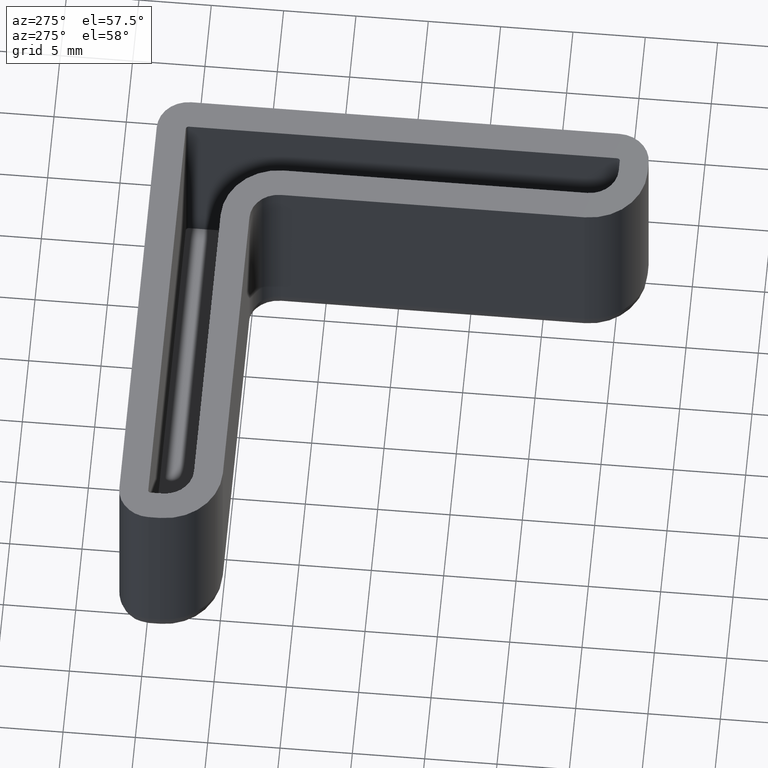
[diagram: clean part render]
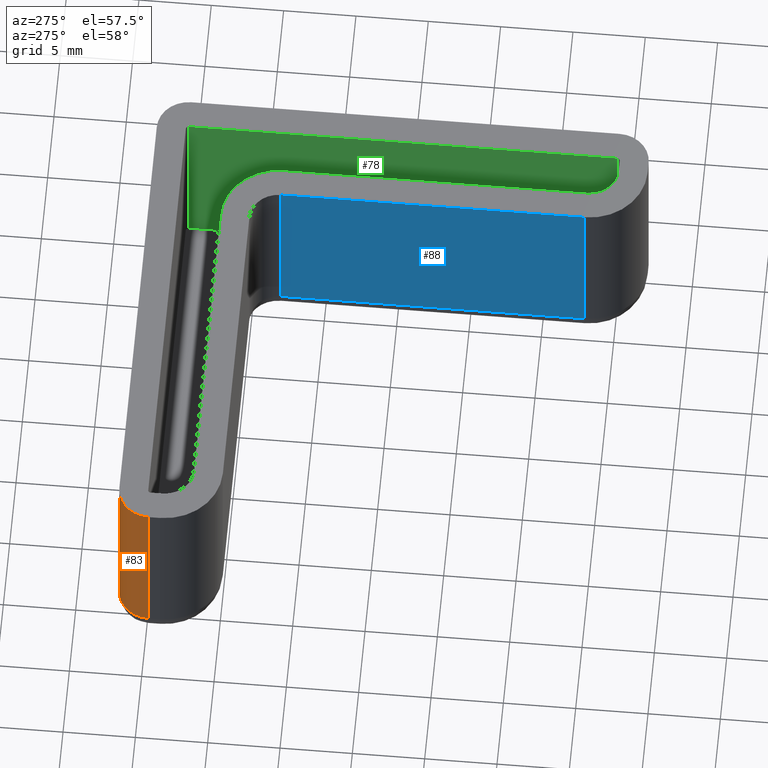
[diagram: same view with three faces highlighted in distinct colors, each labeled with its STEP entity id]
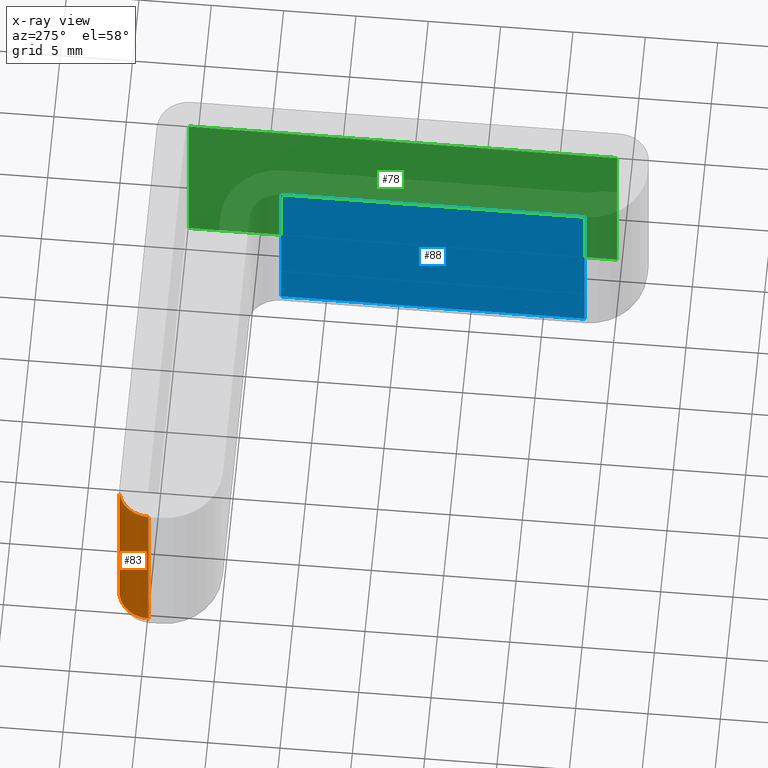
[diagram: x-ray of the same camera — body ghosted, the three highlighted faces saturated]
A machine part, auxiliary view with three faces highlighted in distinct colors.
The next image is the same camera in x-ray (body ghosted, the three faces saturated) — at least one of them is partly hidden behind the body in this view.
Their STEP definitions:

[orange] entity #83 — the highlighted cylindrical surface (edge-blend (fillet) strip) has radius 2.2 mm, axis along (0, 0, -1).
#83 = ADVANCED_FACE( '', ( #132 ), #133, .T. );
#132 = FACE_OUTER_BOUND( '', #211, .T. );
#133 = CYLINDRICAL_SURFACE( '', #212, 2.20000000000000 );
#211 = EDGE_LOOP( '', ( #423, #424, #425, #426 ) );
#212 = AXIS2_PLACEMENT_3D( '', #427, #428, #429 );
#423 = ORIENTED_EDGE( '', *, *, #686, .F. );
#424 = ORIENTED_EDGE( '', *, *, #687, .T. );
#425 = ORIENTED_EDGE( '', *, *, #688, .T. );
#426 = ORIENTED_EDGE( '', *, *, #643, .F. );
#427 = CARTESIAN_POINT( '', ( -29.8000000000000, -0.199999999999995, -15.0000000000000 ) );
#428 = DIRECTION( '', ( 0.000000000000000, 0.000000000000000, -1.00000000000000 ) );
#429 = DIRECTION( '', ( 1.00000000000000, -1.83690953073357E-016, 0.000000000000000 ) );
#643 = EDGE_CURVE( '', #742, #744, #745, .T. );
#686 = EDGE_CURVE( '', #821, #742, #823, .T. );
#687 = EDGE_CURVE( '', #821, #824, #825, .T. );
#688 = EDGE_CURVE( '', #824, #744, #826, .T. );
#742 = VERTEX_POINT( '', #899 );
#744 = VERTEX_POINT( '', #902 );
#745 = CIRCLE( '', #903, 2.20000000000000 );
#821 = VERTEX_POINT( '', #1003 );
#823 = LINE( '', #1006, #1007 );
#824 = VERTEX_POINT( '', #1008 );
#825 = CIRCLE( '', #1009, 2.20000000000000 );
#826 = LINE( '', #1010, #1011 );
#899 = CARTESIAN_POINT( '', ( -29.8000000000000, 2.00000000000001, 0.000000000000000 ) );
#902 = CARTESIAN_POINT( '', ( -32.0000000000000, -0.199999999999995, 0.000000000000000 ) );
#903 = AXIS2_PLACEMENT_3D( '', #1109, #1110, #1111 );
#1003 = CARTESIAN_POINT( '', ( -29.8000000000000, 2.00000000000001, -13.0000000000000 ) );
#1006 = CARTESIAN_POINT( '', ( -29.8000000000000, 2.00000000000001, -15.0000000000000 ) );
#1007 = VECTOR( '', #1188, 1000.00000000000 );
#1008 = CARTESIAN_POINT( '', ( -32.0000000000000, -0.199999999999995, -13.0000000000000 ) );
#1009 = AXIS2_PLACEMENT_3D( '', #1189, #1190, #1191 );
#1010 = CARTESIAN_POINT( '', ( -32.0000000000000, -0.199999999999995, -15.0000000000000 ) );
#1011 = VECTOR( '', #1192, 1000.00000000000 );
#1109 = CARTESIAN_POINT( '', ( -29.8000000000000, -0.199999999999995, 0.000000000000000 ) );
#1110 = DIRECTION( '', ( 0.000000000000000, 0.000000000000000, 1.00000000000000 ) );
#1111 = DIRECTION( '', ( 1.83690953073357E-016, 1.00000000000000, 0.000000000000000 ) );
#1188 = DIRECTION( '', ( 0.000000000000000, 0.000000000000000, 1.00000000000000 ) );
#1189 = CARTESIAN_POINT( '', ( -29.8000000000000, -0.199999999999995, -13.0000000000000 ) );
#1190 = DIRECTION( '', ( 0.000000000000000, 0.000000000000000, 1.00000000000000 ) );
#1191 = DIRECTION( '', ( -1.00000000000000, 1.22460635382238E-016, 0.000000000000000 ) );
#1192 = DIRECTION( '', ( 0.000000000000000, 0.000000000000000, 1.00000000000000 ) );

[blue] entity #88 — the highlighted planar face has unit normal (-1, 0, 0).
#88 = ADVANCED_FACE( '', ( #142 ), #143, .T. );
#142 = FACE_OUTER_BOUND( '', #221, .T. );
#143 = PLANE( '', #222 );
#221 = EDGE_LOOP( '', ( #458, #459, #460, #461 ) );
#222 = AXIS2_PLACEMENT_3D( '', #462, #463, #464 );
#458 = ORIENTED_EDGE( '', *, *, #696, .F. );
#459 = ORIENTED_EDGE( '', *, *, #697, .T. );
#460 = ORIENTED_EDGE( '', *, *, #698, .T. );
#461 = ORIENTED_EDGE( '', *, *, #648, .F. );
#462 = CARTESIAN_POINT( '', ( -5.00000000000000, -7.00000000000001, -15.0000000000000 ) );
#463 = DIRECTION( '', ( -1.00000000000000, 1.83175957041426E-016, 0.000000000000000 ) );
#464 = DIRECTION( '', ( 1.83175957041426E-016, 1.00000000000000, 0.000000000000000 ) );
#648 = EDGE_CURVE( '', #752, #754, #755, .T. );
#696 = EDGE_CURVE( '', #836, #752, #838, .T. );
#697 = EDGE_CURVE( '', #836, #839, #840, .T. );
#698 = EDGE_CURVE( '', #839, #754, #841, .T. );
#752 = VERTEX_POINT( '', #912 );
#754 = VERTEX_POINT( '', #914 );
#755 = LINE( '', #915, #916 );
#836 = VERTEX_POINT( '', #1026 );
#838 = LINE( '', #1028, #1029 );
#839 = VERTEX_POINT( '', #1030 );
#840 = LINE( '', #1031, #1032 );
#841 = LINE( '', #1033, #1034 );
#912 = CARTESIAN_POINT( '', ( -5.00000000000000, -6.99999999999999, 0.000000000000000 ) );
#914 = CARTESIAN_POINT( '', ( -5.00000000000001, -28.0000000000000, 0.000000000000000 ) );
#915 = CARTESIAN_POINT( '', ( -5.00000000000000, -7.00000000000001, 0.000000000000000 ) );
#916 = VECTOR( '', #1120, 1000.00000000000 );
#1026 = CARTESIAN_POINT( '', ( -5.00000000000000, -6.99999999999999, -13.0000000000000 ) );
#1028 = CARTESIAN_POINT( '', ( -5.00000000000000, -6.99999999999999, -15.0000000000000 ) );
#1029 = VECTOR( '', #1204, 1000.00000000000 );
#1030 = CARTESIAN_POINT( '', ( -5.00000000000001, -28.0000000000000, -13.0000000000000 ) );
#1031 = CARTESIAN_POINT( '', ( -5.00000000000000, -28.0000000000000, -13.0000000000000 ) );
#1032 = VECTOR( '', #1205, 1000.00000000000 );
#1033 = CARTESIAN_POINT( '', ( -5.00000000000001, -28.0000000000000, -15.0000000000000 ) );
#1034 = VECTOR( '', #1206, 1000.00000000000 );
#1120 = DIRECTION( '', ( -1.83175957041426E-016, -1.00000000000000, 0.000000000000000 ) );
#1204 = DIRECTION( '', ( 0.000000000000000, 0.000000000000000, 1.00000000000000 ) );
#1205 = DIRECTION( '', ( -1.83175957041426E-016, -1.00000000000000, 0.000000000000000 ) );
#1206 = DIRECTION( '', ( 0.000000000000000, 0.000000000000000, 1.00000000000000 ) );

[green] entity #78 — the highlighted planar face has unit normal (-1, 0, 0).
#78 = ADVANCED_FACE( '', ( #122 ), #123, .T. );
#122 = FACE_OUTER_BOUND( '', #201, .T. );
#123 = PLANE( '', #202 );
#201 = EDGE_LOOP( '', ( #380, #381, #382, #383 ) );
#202 = AXIS2_PLACEMENT_3D( '', #384, #385, #386 );
#380 = ORIENTED_EDGE( '', *, *, #669, .T. );
#381 = ORIENTED_EDGE( '', *, *, #670, .F. );
#382 = ORIENTED_EDGE( '', *, *, #666, .F. );
#383 = ORIENTED_EDGE( '', *, *, #651, .F. );
#384 = CARTESIAN_POINT( '', ( -5.47399040158603E-015, -29.8000000000000, 30.0000000000000 ) );
#385 = DIRECTION( '', ( -1.00000000000000, 1.83690953073357E-016, 0.000000000000000 ) );
#386 = DIRECTION( '', ( -1.83690953073357E-016, -1.00000000000000, 0.000000000000000 ) );
#651 = EDGE_CURVE( '', #759, #760, #761, .T. );
#666 = EDGE_CURVE( '', #760, #788, #789, .T. );
#669 = EDGE_CURVE( '', #759, #793, #794, .T. );
#670 = EDGE_CURVE( '', #788, #793, #795, .T. );
#759 = VERTEX_POINT( '', #921 );
#760 = VERTEX_POINT( '', #922 );
#761 = LINE( '', #923, #924 );
#788 = VERTEX_POINT( '', #958 );
#789 = LINE( '', #959, #960 );
#793 = VERTEX_POINT( '', #965 );
#794 = LINE( '', #966, #967 );
#795 = LINE( '', #968, #969 );
#921 = CARTESIAN_POINT( '', ( -3.67381906146730E-017, -0.200000000000009, 6.93889390390723E-015 ) );
#922 = CARTESIAN_POINT( '', ( -5.47399040158603E-015, -29.8000000000000, 6.93889390390723E-015 ) );
#923 = CARTESIAN_POINT( '', ( -5.46536557330390E-015, -29.8000000000000, 0.000000000000000 ) );
#924 = VECTOR( '', #1125, 1000.00000000000 );
#958 = CARTESIAN_POINT( '', ( -5.47399040158603E-015, -29.8000000000000, -13.0000000000000 ) );
#959 = CARTESIAN_POINT( '', ( -5.47399040158603E-015, -29.8000000000000, 30.0000000000000 ) );
#960 = VECTOR( '', #1154, 1000.00000000000 );
#965 = CARTESIAN_POINT( '', ( -3.67381906146730E-017, -0.200000000000009, -13.0000000000000 ) );
#966 = CARTESIAN_POINT( '', ( -3.67381906146730E-017, -0.200000000000009, 30.0000000000000 ) );
#967 = VECTOR( '', #1159, 1000.00000000000 );
#968 = CARTESIAN_POINT( '', ( -5.47399040158603E-015, -29.8000000000000, -13.0000000000000 ) );
#969 = VECTOR( '', #1160, 1000.00000000000 );
#1125 = DIRECTION( '', ( -1.83690953073357E-016, -1.00000000000000, 0.000000000000000 ) );
#1154 = DIRECTION( '', ( 0.000000000000000, 0.000000000000000, -1.00000000000000 ) );
#1159 = DIRECTION( '', ( 0.000000000000000, 0.000000000000000, -1.00000000000000 ) );
#1160 = DIRECTION( '', ( 1.83690953073357E-016, 1.00000000000000, 0.000000000000000 ) );